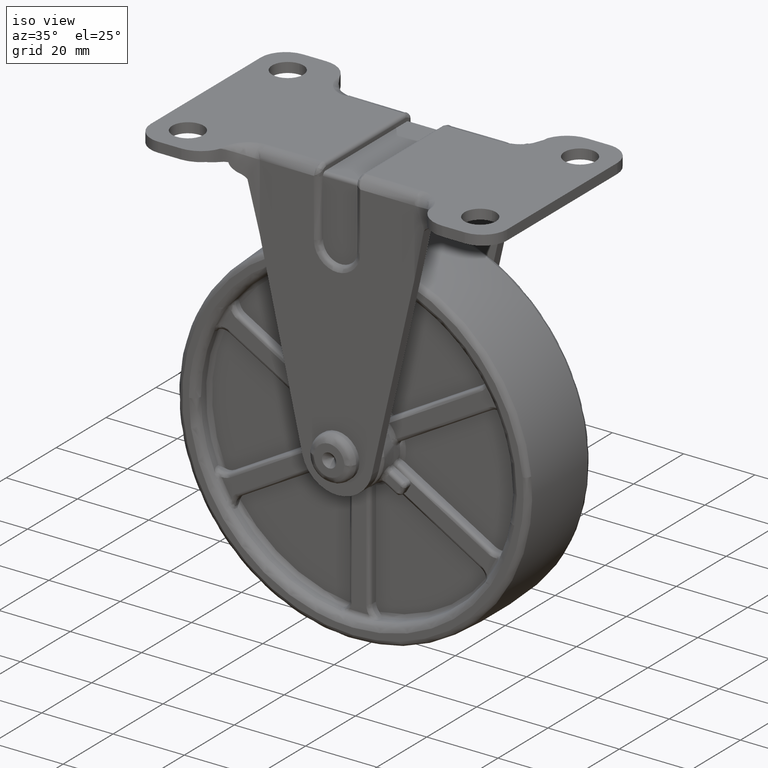
[diagram: clean part render]
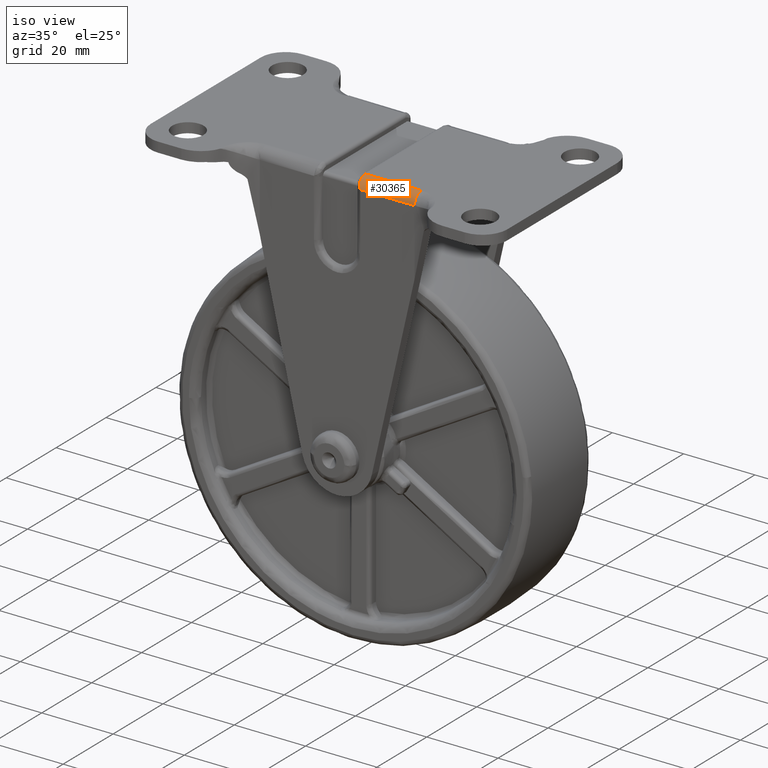
[diagram: same view with one face highlighted and labeled with its STEP entity id]
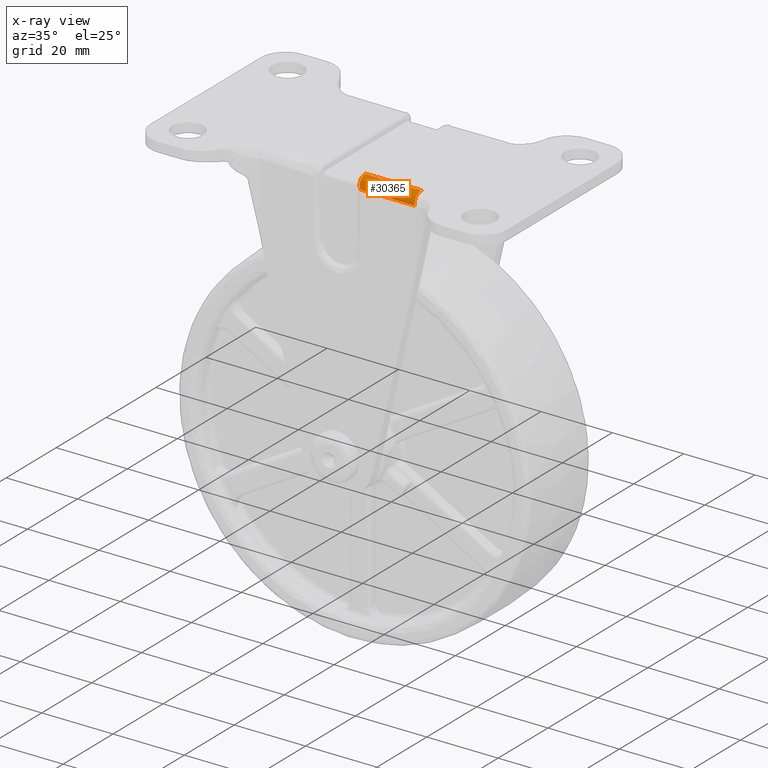
[diagram: x-ray of the same camera — body ghosted, the highlighted face saturated]
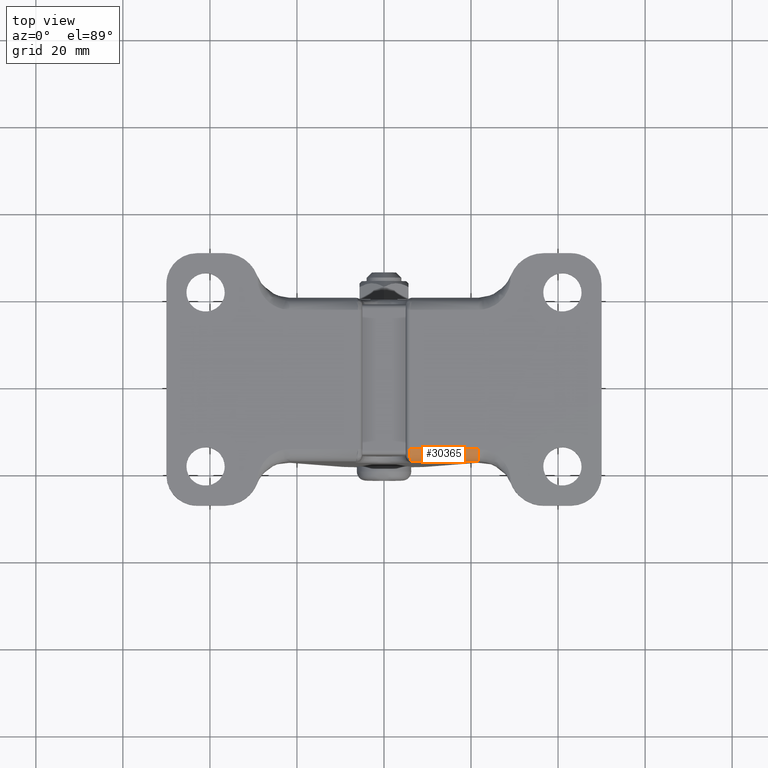
[diagram: same view with one face highlighted and labeled with its STEP entity id]
A machine part, iso view. The second image highlights one B-rep face of the part: STEP entity #30365.
The next image is the same camera in x-ray: the body ghosted, the highlighted face saturated — about 0% of this face is hidden behind the body in this view.
A second angle (top view) of the same face is appended — the face is thin or edge-on in the first view.
In plain terms, the highlighted face is a freeform B-spline surface patch.
Its self-contained STEP definition (entity closure, byte-faithful):
#29313=CARTESIAN_POINT('',(6.499997999999920,-18.799995000000049,69.200000000000003));
#29314=VERTEX_POINT('',#29313);
#29350=CARTESIAN_POINT('',(5.999997999999921,-18.022217222222249,71.136651048576098));
#29351=VERTEX_POINT('',#29350);
#29352=CARTESIAN_POINT('',(5.999997999999921,-18.022217222222249,71.136651048576098));
#29353=CARTESIAN_POINT('',(5.999997999999923,-18.086233546808280,71.069806154521487));
#29354=CARTESIAN_POINT('',(6.004999563876763,-18.146322776913340,71.000449567018507));
#29355=CARTESIAN_POINT('',(6.022294664422121,-18.259091944901510,70.856750603700974));
#29356=CARTESIAN_POINT('',(6.034624593892695,-18.311785603278480,70.782381651619659));
#29357=CARTESIAN_POINT('',(6.080325688381000,-18.458809628573409,70.551835996513603));
#29358=CARTESIAN_POINT('',(6.121248669747297,-18.539329456047799,70.392908387244916));
#29359=CARTESIAN_POINT('',(6.191889539814721,-18.636729101803450,70.146279954028643));
#29360=CARTESIAN_POINT('',(6.217078760828518,-18.665289664263351,70.062562759421056));
#29361=CARTESIAN_POINT('',(6.269878366056007,-18.714379805851049,69.892766401506123));
#29362=CARTESIAN_POINT('',(6.297271967612832,-18.734725001287970,69.807375214405852));
#29363=CARTESIAN_POINT('',(6.353466739981768,-18.767306787029550,69.635474803388689));
#29364=CARTESIAN_POINT('',(6.382275892098332,-18.779543845289862,69.548950382225357));
#29365=CARTESIAN_POINT('',(6.426174902399680,-18.791818320390909,69.418259217156205));
#29366=CARTESIAN_POINT('',(6.440885659034016,-18.794884233544689,69.374654378025184));
#29367=CARTESIAN_POINT('',(6.470404660434969,-18.798973581296959,69.287343465629917));
#29368=CARTESIAN_POINT('',(6.485278517344316,-18.799995000000049,69.243444133669428));
#29369=CARTESIAN_POINT('',(6.499997999999920,-18.799995000000049,69.200000000000003));
#29370=B_SPLINE_CURVE_WITH_KNOTS('',3,(#29352,#29353,#29354,#29355,#29356,#29357,#29358,#29359,#29360,#29361,#29362,#29363,#29364,#29365,#29366,#29367,#29368,#29369),.UNSPECIFIED.,.F.,.U.,(4,2,2,2,2,2,2,2,4),(0.0,0.124999999999992,0.249999999999985,0.499999999999971,0.624999999999974,0.749999999999976,0.874999999999979,0.937499999999990,1.0),.UNSPECIFIED.);
#29371=EDGE_CURVE('',#29351,#29314,#29370,.T.);
#29427=CARTESIAN_POINT('',(5.999997999999921,-15.999995000000050,72.0));
#29428=VERTEX_POINT('',#29427);
#29462=CARTESIAN_POINT('',(5.999997999999922,-15.999995000000050,72.0));
#29463=CARTESIAN_POINT('',(5.999997999999921,-17.195401240433181,71.999999999999972));
#29464=CARTESIAN_POINT('',(5.999997999999921,-18.022217222222196,71.136651048576056));
#29472=(BOUNDED_CURVE()B_SPLINE_CURVE(2,(#29462,#29463,#29464),.UNSPECIFIED.,.F.,.U.)B_SPLINE_CURVE_WITH_KNOTS((3,3),(0.486955697391564,1.0),.UNSPECIFIED.)CURVE()GEOMETRIC_REPRESENTATION_ITEM()RATIONAL_B_SPLINE_CURVE((1.0,0.849732802815113,0.853653064399515))REPRESENTATION_ITEM(''));
#29473=EDGE_CURVE('',#29428,#29351,#29472,.T.);
#30298=CARTESIAN_POINT('',(21.703261999999899,-18.799995000000049,69.200000000000003));
#30299=CARTESIAN_POINT('',(21.703261999999896,-18.799995000000003,71.999999999999929));
#30300=CARTESIAN_POINT('',(21.703261999999899,-15.999995000000050,72.0));
#30301=CARTESIAN_POINT('',(16.635507333333251,-18.799995000000049,69.200000000000003));
#30302=CARTESIAN_POINT('',(16.635507333333237,-18.799995000000003,71.999999999999929));
#30303=CARTESIAN_POINT('',(16.635507333333251,-15.999995000000050,72.0));
#30304=CARTESIAN_POINT('',(11.567752666666600,-18.799995000000049,69.200000000000003));
#30305=CARTESIAN_POINT('',(11.567752666666577,-18.799995000000003,71.999999999999929));
#30306=CARTESIAN_POINT('',(11.567752666666600,-15.999995000000050,72.0));
#30307=CARTESIAN_POINT('',(6.499997999999920,-18.799995000000049,69.200000000000003));
#30308=CARTESIAN_POINT('',(6.499997999999915,-18.799995000000003,71.999999999999929));
#30309=CARTESIAN_POINT('',(6.499997999999920,-15.999995000000050,72.0));
#30310=CARTESIAN_POINT('',(6.333331333333251,-18.799995000000049,69.200000000000003));
#30311=CARTESIAN_POINT('',(6.333331333333248,-18.799995000000003,71.999999999999929));
#30312=CARTESIAN_POINT('',(6.333331333333251,-15.999995000000050,72.0));
#30313=CARTESIAN_POINT('',(6.166664666666581,-18.799995000000049,69.200000000000003));
#30314=CARTESIAN_POINT('',(6.166664666666579,-18.799995000000003,71.999999999999929));
#30315=CARTESIAN_POINT('',(6.166664666666581,-15.999995000000050,72.0));
#30316=CARTESIAN_POINT('',(5.999997999999914,-18.799995000000049,69.200000000000003));
#30317=CARTESIAN_POINT('',(5.999997999999910,-18.799995000000003,71.999999999999929));
#30318=CARTESIAN_POINT('',(5.999997999999914,-15.999995000000050,72.0));
#30326=(BOUNDED_SURFACE()B_SPLINE_SURFACE(2,3,((#30298,#30301,#30304,#30307,#30310,#30313,#30316),(#30299,#30302,#30305,#30308,#30311,#30314,#30317),(#30300,#30303,#30306,#30309,#30312,#30315,#30318)),.UNSPECIFIED.,.F.,.F.,.U.)B_SPLINE_SURFACE_WITH_KNOTS((3,3),(4,3,4),(0.0,4.639191898578677),(0.0,15.203263999999990,15.703263999999990),.UNSPECIFIED.)GEOMETRIC_REPRESENTATION_ITEM()RATIONAL_B_SPLINE_SURFACE(((1.0,1.0,1.0,1.0,1.0,1.0,1.0),(0.707106781186548,0.707106781186548,0.707106781186548,0.707106781186548,0.707106781186548,0.707106781186548,0.707106781186548),(1.0,1.0,1.0,1.0,1.0,1.0,1.0)))REPRESENTATION_ITEM('')SURFACE());
#30327=ORIENTED_EDGE('',*,*,#29473,.T.);
#30328=ORIENTED_EDGE('',*,*,#29371,.T.);
#30329=CARTESIAN_POINT('',(21.703261999999899,-18.799995000000049,69.200000000000003));
#30330=VERTEX_POINT('',#30329);
#30331=CARTESIAN_POINT('',(21.703261999999899,-18.799995000000049,69.200000000000003));
#30332=CARTESIAN_POINT('',(16.635507333333251,-18.799995000000049,69.200000000000003));
#30333=CARTESIAN_POINT('',(11.567752666666600,-18.799995000000049,69.200000000000003));
#30334=CARTESIAN_POINT('',(6.499997999999920,-18.799995000000049,69.200000000000003));
#30335=B_SPLINE_CURVE_WITH_KNOTS('',3,(#30331,#30332,#30333,#30334),.UNSPECIFIED.,.F.,.U.,(4,4),(0.0,0.303399064198869),.UNSPECIFIED.);
#30336=EDGE_CURVE('',#30330,#29314,#30335,.T.);
#30337=ORIENTED_EDGE('',*,*,#30336,.F.);
#30338=CARTESIAN_POINT('',(21.703261999999899,-15.999995000000050,72.0));
#30339=VERTEX_POINT('',#30338);
#30340=CARTESIAN_POINT('',(21.703261999999899,-18.799995000000049,69.200000000000003));
#30341=CARTESIAN_POINT('',(21.703261999998556,-18.799994999999985,71.999999999999957));
#30342=CARTESIAN_POINT('',(21.703261999999899,-15.999995000000050,72.0));
#30350=(BOUNDED_CURVE()B_SPLINE_CURVE(2,(#30340,#30341,#30342),.UNSPECIFIED.,.F.,.U.)CURVE()GEOMETRIC_REPRESENTATION_ITEM()QUASI_UNIFORM_CURVE()RATIONAL_B_SPLINE_CURVE((1.0,0.707106781186552,1.0))REPRESENTATION_ITEM(''));
#30351=EDGE_CURVE('',#30330,#30339,#30350,.T.);
#30352=ORIENTED_EDGE('',*,*,#30351,.T.);
#30353=CARTESIAN_POINT('',(5.999997999999914,-15.999995000000050,72.0));
#30354=CARTESIAN_POINT('',(6.166664666666581,-15.999995000000050,72.0));
#30355=CARTESIAN_POINT('',(6.333331333333251,-15.999995000000050,72.0));
#30356=CARTESIAN_POINT('',(6.499997999999920,-15.999995000000050,72.0));
#30357=CARTESIAN_POINT('',(11.567752666666600,-15.999995000000050,72.0));
#30358=CARTESIAN_POINT('',(16.635507333333251,-15.999995000000050,72.0));
#30359=CARTESIAN_POINT('',(21.703261999999899,-15.999995000000050,72.0));
#30360=B_SPLINE_CURVE_WITH_KNOTS('',3,(#30353,#30354,#30355,#30356,#30357,#30358,#30359),.UNSPECIFIED.,.F.,.U.,(4,3,4),(0.0,0.009978089711488,0.313377153910357),.UNSPECIFIED.);
#30361=EDGE_CURVE('',#29428,#30339,#30360,.T.);
#30362=ORIENTED_EDGE('',*,*,#30361,.F.);
#30363=EDGE_LOOP('',(#30327,#30328,#30337,#30352,#30362));
#30364=FACE_OUTER_BOUND('',#30363,.T.);
#30365=ADVANCED_FACE('',(#30364),#30326,.T.);